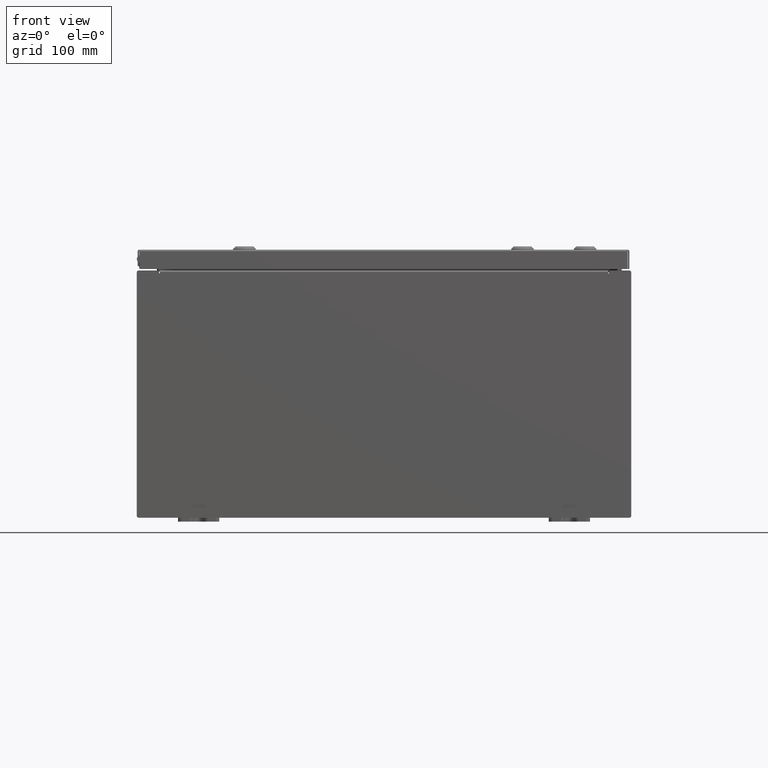
[diagram: clean part render]
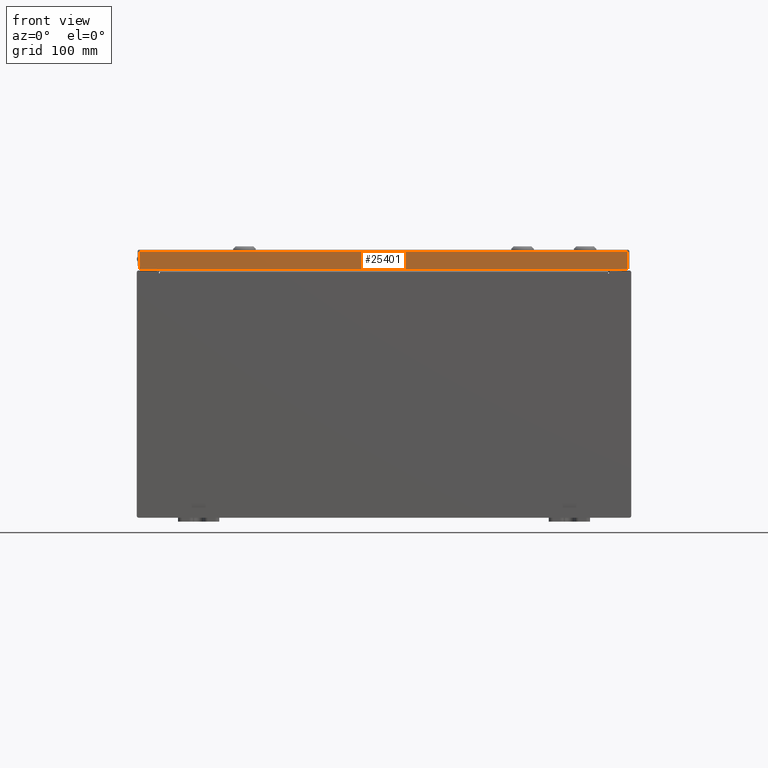
[diagram: same view with one face highlighted and labeled with its STEP entity id]
A machine part, front view. The second image highlights one B-rep face of the part: STEP entity #25401.
In plain terms, the highlighted planar face has unit normal (-0, 1, -0).
Its self-contained STEP definition (entity closure, byte-faithful):
#1849 = CARTESIAN_POINT ( 'NONE',  ( -11.84865786437626800, -9.937500000000001800, -0.08769999999999769600 ) ) ;
#5120 = VECTOR ( 'NONE', #33814, 39.37007874015748100 ) ;
#5151 = DIRECTION ( 'NONE',  ( 0.0000000000000000000, 5.064839849203732200E-015, 1.000000000000000000 ) ) ;
#5243 = VECTOR ( 'NONE', #19644, 39.37007874015748100 ) ;
#6651 = LINE ( 'NONE', #24201, #5120 ) ;
#9441 = CARTESIAN_POINT ( 'NONE',  ( 9.096624732829760300E-016, -9.937500000000001800, 5.059265965747368200E-014 ) ) ;
#11060 = FACE_OUTER_BOUND ( 'NONE', #22814, .T. ) ;
#12468 = LINE ( 'NONE', #49127, #50100 ) ;
#14419 = VERTEX_POINT ( 'NONE', #32596 ) ;
#18267 = LINE ( 'NONE', #24587, #5243 ) ;
#18919 = PLANE ( 'NONE',  #41408 ) ;
#19644 = DIRECTION ( 'NONE',  ( 1.000000000000000000, 9.153836209136819300E-017, -9.153836209136798400E-017 ) ) ;
#20754 = EDGE_CURVE ( 'NONE', #35149, #49056, #18267, .T. ) ;
#22814 = EDGE_LOOP ( 'NONE', ( #29406, #42928, #60393, #29716 ) ) ;
#23588 = DIRECTION ( 'NONE',  ( -1.000000000000000000, -9.153836209136800800E-017, 1.258652478756310100E-016 ) ) ;
#24201 = CARTESIAN_POINT ( 'NONE',  ( -11.84865786437626600, -9.937500000000001800, 5.059265965747368800E-014 ) ) ;
#24587 = CARTESIAN_POINT ( 'NONE',  ( 11.93750000000000000, -9.937500000000001800, -0.08769999999999987500 ) ) ;
#25401 = ADVANCED_FACE ( 'NONE', ( #11060 ), #18919, .F. ) ;
#29063 = CARTESIAN_POINT ( 'NONE',  ( -11.84865786437626800, -9.937500000000005300, -0.9376999999999967600 ) ) ;
#29406 = ORIENTED_EDGE ( 'NONE', *, *, #20754, .F. ) ;
#29716 = ORIENTED_EDGE ( 'NONE', *, *, #40031, .F. ) ;
#31045 = CARTESIAN_POINT ( 'NONE',  ( 11.84865786437623900, -9.937500000000001800, -0.08769999999999877900 ) ) ;
#32596 = CARTESIAN_POINT ( 'NONE',  ( 11.84865786437626900, -9.937500000000005300, -0.9376999999999997600 ) ) ;
#33814 = DIRECTION ( 'NONE',  ( 0.0000000000000000000, -5.064839849203732200E-015, -1.000000000000000000 ) ) ;
#34465 = DIRECTION ( 'NONE',  ( -9.153836209136862500E-017, 1.000000000000000000, -5.064839849203732200E-015 ) ) ;
#35149 = VERTEX_POINT ( 'NONE', #1849 ) ;
#39044 = VERTEX_POINT ( 'NONE', #29063 ) ;
#40031 = EDGE_CURVE ( 'NONE', #49056, #14419, #12468, .T. ) ;
#41408 = AXIS2_PLACEMENT_3D ( 'NONE', #9441, #34465, #5151 ) ;
#42928 = ORIENTED_EDGE ( 'NONE', *, *, #59444, .T. ) ;
#49056 = VERTEX_POINT ( 'NONE', #31045 ) ;
#49127 = CARTESIAN_POINT ( 'NONE',  ( 11.84865786437626900, -9.937500000000001800, -0.07469999999999962800 ) ) ;
#50100 = VECTOR ( 'NONE', #54034, 39.37007874015748100 ) ;
#52963 = CARTESIAN_POINT ( 'NONE',  ( 11.93750000000000000, -9.937500000000005300, -0.9376999999999997600 ) ) ;
#54034 = DIRECTION ( 'NONE',  ( -0.0000000000000000000, -5.064839849203732200E-015, -1.000000000000000000 ) ) ;
#59444 = EDGE_CURVE ( 'NONE', #35149, #39044, #6651, .T. ) ;
#60393 = ORIENTED_EDGE ( 'NONE', *, *, #60697, .F. ) ;
#60697 = EDGE_CURVE ( 'NONE', #14419, #39044, #62556, .T. ) ;
#61038 = VECTOR ( 'NONE', #23588, 39.37007874015748100 ) ;
#62556 = LINE ( 'NONE', #52963, #61038 ) ;